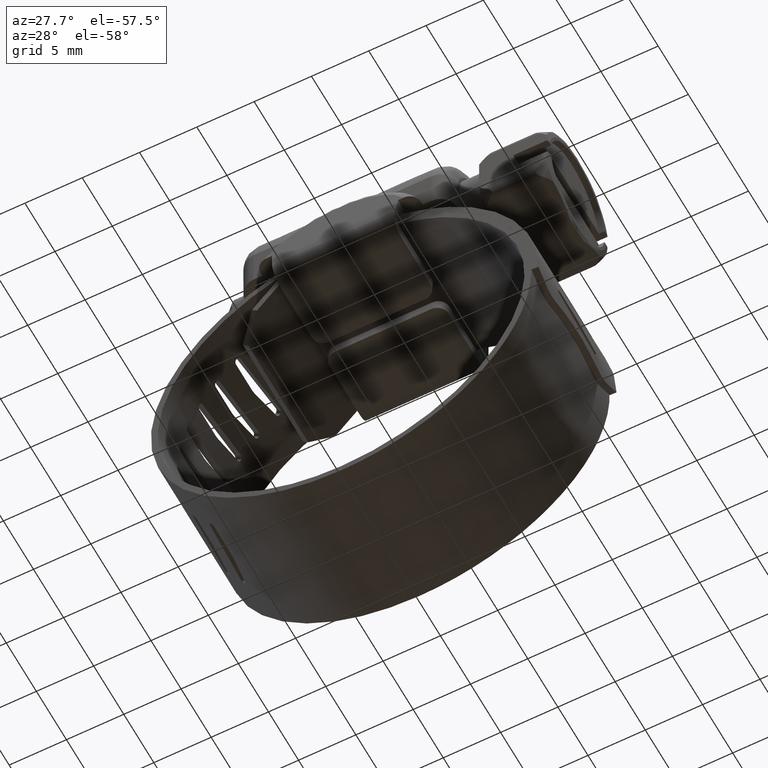
[diagram: clean part render]
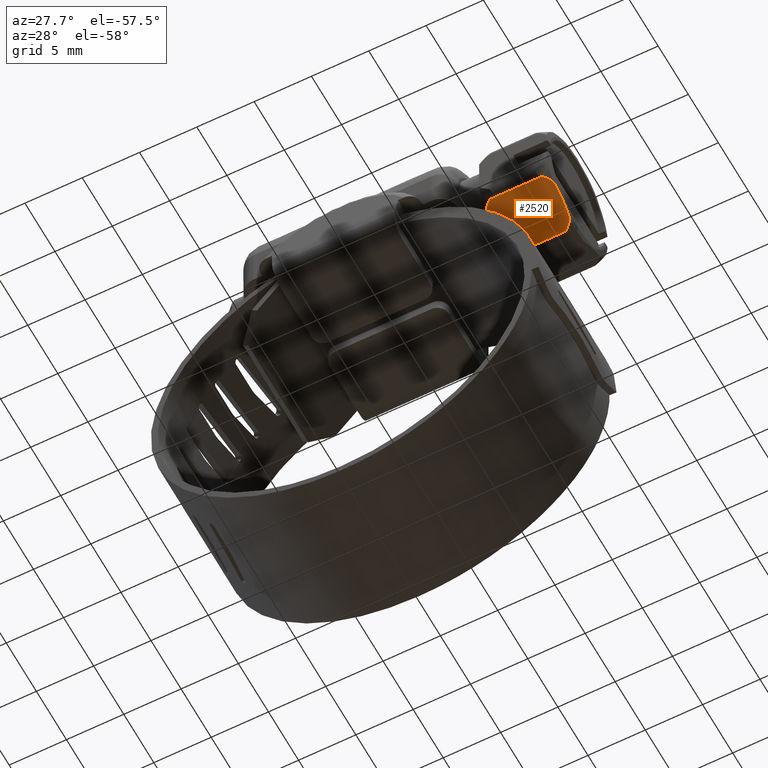
[diagram: same view with one face highlighted and labeled with its STEP entity id]
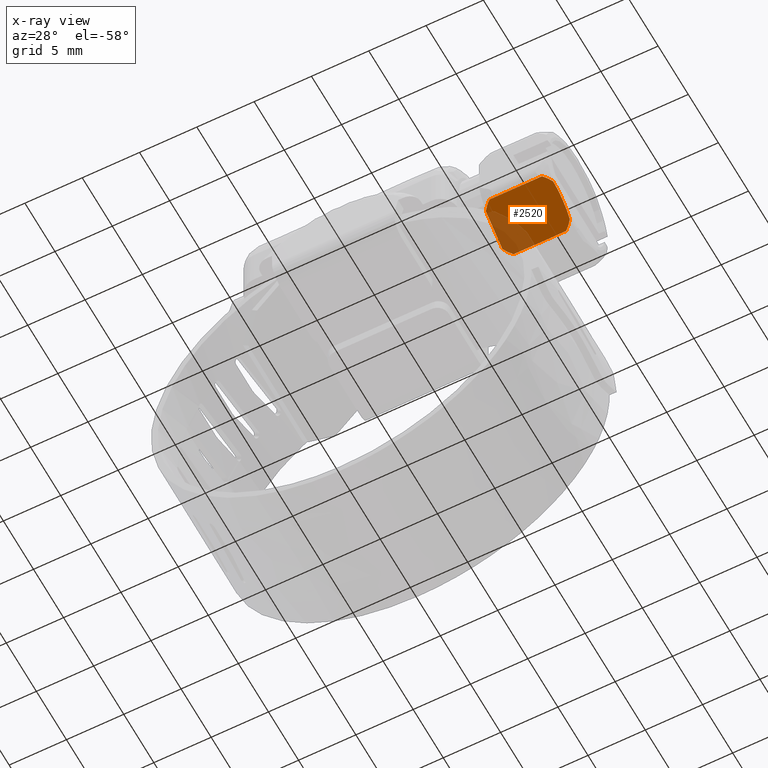
[diagram: x-ray of the same camera — body ghosted, the highlighted face saturated]
A machine part, auxiliary view. The second image highlights one B-rep face of the part: STEP entity #2520.
The next image is the same camera in x-ray: the body ghosted, the highlighted face saturated — about 25% of this face is hidden behind the body in this view.
In plain terms, the highlighted face is a freeform B-spline surface patch.
Its self-contained STEP definition (entity closure, byte-faithful):
#783=CARTESIAN_POINT('',(11.900435047845320,-0.500000000000000,10.342293596215660));
#784=VERTEX_POINT('',#783);
#806=CARTESIAN_POINT('',(11.250000000000000,-1.113577600822296,10.696542181229260));
#807=VERTEX_POINT('',#806);
#808=CARTESIAN_POINT('',(11.250000000000000,-1.113577600822296,10.696542181229260));
#809=CARTESIAN_POINT('',(11.430054192310060,-0.882605687783683,10.563190205726681));
#810=CARTESIAN_POINT('',(11.650101467289280,-0.675096832536971,10.443385118485690));
#811=CARTESIAN_POINT('',(11.900435047845320,-0.500000000000000,10.342293596215660));
#812=B_SPLINE_CURVE_WITH_KNOTS('',3,(#808,#809,#810,#811),.UNSPECIFIED.,.F.,.U.,(4,4),(1.416495E-009,0.965336057372342),.UNSPECIFIED.);
#813=EDGE_CURVE('',#807,#784,#812,.T.);
#913=CARTESIAN_POINT('',(17.129174469778999,-1.113578722658506,10.696542828921681));
#914=VERTEX_POINT('',#913);
#922=CARTESIAN_POINT('',(16.478738952168548,-0.500000258178796,10.342293149059699));
#923=VERTEX_POINT('',#922);
#924=CARTESIAN_POINT('',(16.478738952168548,-0.500000258178796,10.342293149059699));
#925=CARTESIAN_POINT('',(16.729265003471941,-0.674910804187572,10.443277796525511));
#926=CARTESIAN_POINT('',(16.949348452577361,-0.882458279925166,10.563105383529450));
#927=CARTESIAN_POINT('',(17.129174469778999,-1.113578722658506,10.696542828921681));
#928=B_SPLINE_CURVE_WITH_KNOTS('',3,(#924,#925,#926,#927),.UNSPECIFIED.,.F.,.U.,(4,4),(1.450888E-009,0.965379944163823),.UNSPECIFIED.);
#929=EDGE_CURVE('',#923,#914,#928,.T.);
#1410=CARTESIAN_POINT('',(11.250000000000000,-3.886389782198410,12.297425987349881));
#1411=VERTEX_POINT('',#1410);
#1422=CARTESIAN_POINT('',(11.900480479008820,-4.500000000000000,12.651694000000200));
#1423=VERTEX_POINT('',#1422);
#1424=CARTESIAN_POINT('',(11.900480479008820,-4.500000000000000,12.651694000000200));
#1425=CARTESIAN_POINT('',(11.649905188176790,-4.325106714166947,12.550719317701070));
#1426=CARTESIAN_POINT('',(11.429867398104550,-4.117500675946485,12.430857919633080));
#1427=CARTESIAN_POINT('',(11.250000000000000,-3.886389782198410,12.297425987349881));
#1428=B_SPLINE_CURVE_WITH_KNOTS('',3,(#1424,#1425,#1426,#1427),.UNSPECIFIED.,.F.,.U.,(4,4),(1.450855E-009,0.965437874158178),.UNSPECIFIED.);
#1429=EDGE_CURVE('',#1423,#1411,#1428,.T.);
#1973=CARTESIAN_POINT('',(16.478693520991701,-4.499999741830980,12.651694447161900));
#1974=VERTEX_POINT('',#1973);
#2010=CARTESIAN_POINT('',(17.129174469778999,-3.886388660362200,12.297425339657460));
#2011=VERTEX_POINT('',#2010);
#2012=CARTESIAN_POINT('',(17.129174469778999,-3.886388660362200,12.297425339657460));
#2013=CARTESIAN_POINT('',(16.949107329502610,-4.117373794238096,12.430784861720619));
#2014=CARTESIAN_POINT('',(16.729047522124350,-4.324896928827068,12.550598597024550));
#2015=CARTESIAN_POINT('',(16.478693520991701,-4.499999741830980,12.651694447161900));
#2016=B_SPLINE_CURVE_WITH_KNOTS('',3,(#2012,#2013,#2014,#2015),.UNSPECIFIED.,.F.,.U.,(4,4),(1.417357E-009,0.965396663321476),.UNSPECIFIED.);
#2017=EDGE_CURVE('',#2011,#1974,#2016,.T.);
#2123=CARTESIAN_POINT('',(17.129174469778999,-1.113578722658506,10.696542828921681));
#2124=CARTESIAN_POINT('',(17.151113832039009,-1.228543983433876,10.762918050971660));
#2125=CARTESIAN_POINT('',(17.167112906900801,-1.343741871101246,10.829427580215890));
#2126=CARTESIAN_POINT('',(17.191822872599712,-1.574423058148306,10.962611421227811));
#2127=CARTESIAN_POINT('',(17.200501123146029,-1.689907635750563,11.029286470977620));
#2128=CARTESIAN_POINT('',(17.213327306376861,-1.921054202196873,11.162738998902050));
#2129=CARTESIAN_POINT('',(17.217466897942131,-2.036716517686512,11.229516665665569));
#2130=CARTESIAN_POINT('',(17.222812422503669,-2.268156033321928,11.363138327877570));
#2131=CARTESIAN_POINT('',(17.225221293674171,-2.499710550893353,11.496826386486060));
#2132=CARTESIAN_POINT('',(17.222819390920961,-2.731453462613233,11.630623214503270));
#2133=CARTESIAN_POINT('',(17.217466783608760,-2.963311926525250,11.764486756607489));
#2134=CARTESIAN_POINT('',(17.213318554696809,-3.079157905911830,11.831370461767831));
#2135=CARTESIAN_POINT('',(17.200469901089338,-3.310535136148735,11.964956163489420));
#2136=CARTESIAN_POINT('',(17.191776655144771,-3.426073766249249,12.031662420462609));
#2137=CARTESIAN_POINT('',(17.167055167458582,-3.656666152636836,12.164794992391590));
#2138=CARTESIAN_POINT('',(17.151056870019030,-3.771721888367162,12.231222450179430));
#2139=CARTESIAN_POINT('',(17.129174469778999,-3.886388660362200,12.297425339657460));
#2140=B_SPLINE_CURVE_WITH_KNOTS('',3,(#2123,#2124,#2125,#2126,#2127,#2128,#2129,#2130,#2131,#2132,#2133,#2134,#2135,#2136,#2137,#2138,#2139),.UNSPECIFIED.,.F.,.U.,(4,2,2,2,1,2,2,2,4),(0.0,0.125000000000000,0.250000000000000,0.375000000000000,0.500000000000000,0.625000000000000,0.750000000000000,0.875000000000000,1.0),.UNSPECIFIED.);
#2141=EDGE_CURVE('',#914,#2011,#2140,.T.);
#2483=CARTESIAN_POINT('',(11.900480479008820,-4.500000000000000,12.651694000000200));
#2484=CARTESIAN_POINT('',(16.478693520991701,-4.499999741830980,12.651694447161900));
#2485=QUASI_UNIFORM_CURVE('',1,(#2483,#2484),.UNSPECIFIED.,.F.,.U.);
#2486=EDGE_CURVE('',#1423,#1974,#2485,.T.);
#2497=CARTESIAN_POINT('',(10.951610865904071,-0.300200091071539,10.226938472630270));
#2498=CARTESIAN_POINT('',(10.951610865904071,-4.699800095571802,12.767048635128599));
#2499=CARTESIAN_POINT('',(17.522145964496499,-0.300200091071539,10.226938472630270));
#2500=CARTESIAN_POINT('',(17.522145964496499,-4.699800095571802,12.767048635128599));
#2501=B_SPLINE_SURFACE_WITH_KNOTS('',1,1,((#2497,#2499),(#2498,#2500)),.UNSPECIFIED.,.F.,.F.,.U.,(2,2),(2,2),(0.0,5.080220451636522),(0.0,6.570535098592426),.UNSPECIFIED.);
#2502=ORIENTED_EDGE('',*,*,#2486,.F.);
#2503=ORIENTED_EDGE('',*,*,#1429,.T.);
#2504=CARTESIAN_POINT('',(11.250000000000000,-3.886389782198410,12.297425987349881));
#2505=CARTESIAN_POINT('',(11.250000000000000,-1.113577600822296,10.696542181229260));
#2506=QUASI_UNIFORM_CURVE('',1,(#2504,#2505),.UNSPECIFIED.,.F.,.U.);
#2507=EDGE_CURVE('',#1411,#807,#2506,.T.);
#2508=ORIENTED_EDGE('',*,*,#2507,.T.);
#2509=ORIENTED_EDGE('',*,*,#813,.T.);
#2510=CARTESIAN_POINT('',(11.900435047845320,-0.500000000000000,10.342293596215660));
#2511=CARTESIAN_POINT('',(16.478738952168548,-0.500000258178796,10.342293149059699));
#2512=QUASI_UNIFORM_CURVE('',1,(#2510,#2511),.UNSPECIFIED.,.F.,.U.);
#2513=EDGE_CURVE('',#784,#923,#2512,.T.);
#2514=ORIENTED_EDGE('',*,*,#2513,.T.);
#2515=ORIENTED_EDGE('',*,*,#929,.T.);
#2516=ORIENTED_EDGE('',*,*,#2141,.T.);
#2517=ORIENTED_EDGE('',*,*,#2017,.T.);
#2518=EDGE_LOOP('',(#2502,#2503,#2508,#2509,#2514,#2515,#2516,#2517));
#2519=FACE_OUTER_BOUND('',#2518,.T.);
#2520=ADVANCED_FACE('',(#2519),#2501,.F.);